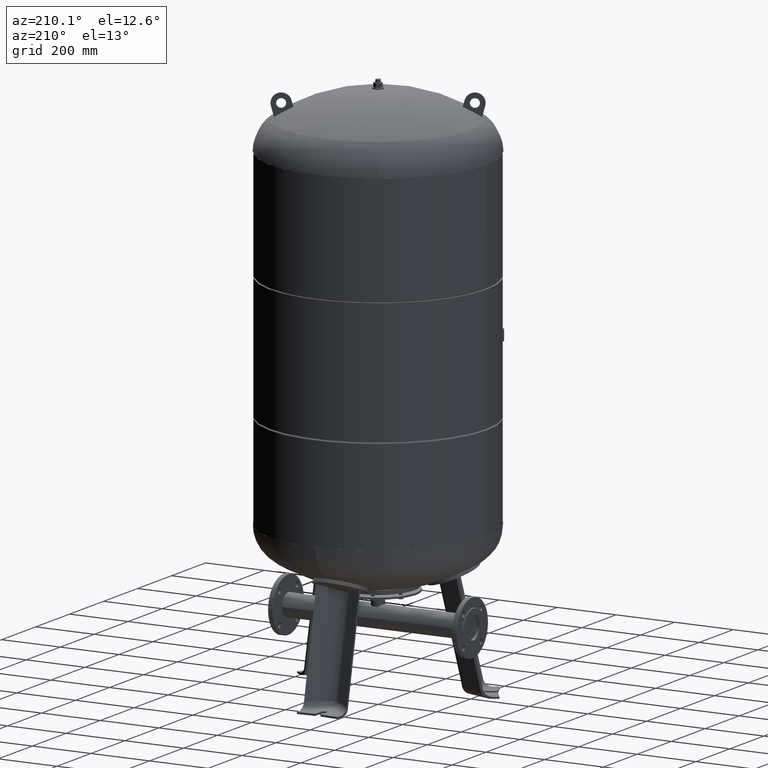
[diagram: clean part render]
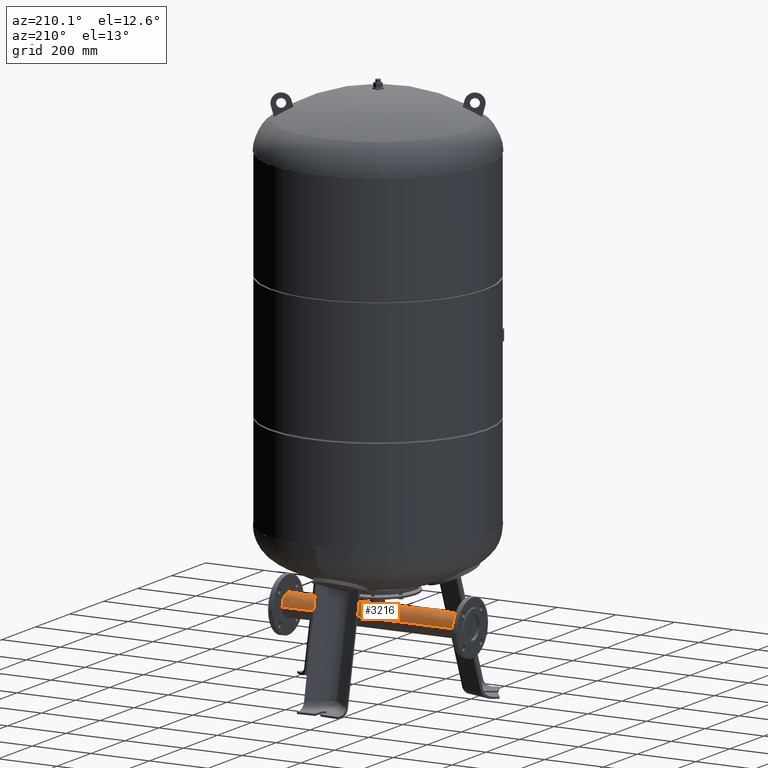
[diagram: same view with one face highlighted and labeled with its STEP entity id]
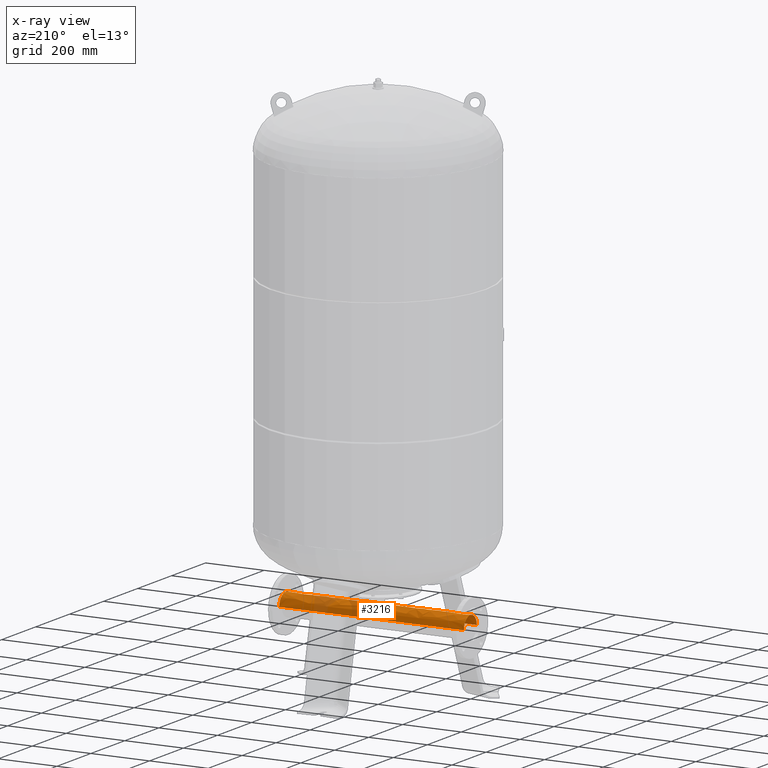
[diagram: x-ray of the same camera — body ghosted, the highlighted face saturated]
A machine part, auxiliary view. The second image highlights one B-rep face of the part: STEP entity #3216.
The next image is the same camera in x-ray: the body ghosted, the highlighted face saturated — about 13% of this face is hidden behind the body in this view.
In plain terms, the highlighted face is a freeform B-spline surface patch.
Its self-contained STEP definition (entity closure, byte-faithful):
#3035=CARTESIAN_POINT('',(-315.0,38.049999999999997,235.0));
#3036=CARTESIAN_POINT('',(315.0,38.049999999999997,235.0));
#3037=CARTESIAN_POINT('',(-315.0,38.049999999999990,196.950000000000020));
#3038=CARTESIAN_POINT('',(315.0,38.049999999999990,196.950000000000020));
#3039=CARTESIAN_POINT('',(-315.0,0.0,196.949999999999990));
#3040=CARTESIAN_POINT('',(315.0,0.0,196.949999999999990));
#3041=CARTESIAN_POINT('',(-315.0,-38.049999999999990,196.950000000000020));
#3042=CARTESIAN_POINT('',(315.0,-38.049999999999990,196.950000000000020));
#3043=CARTESIAN_POINT('',(-315.0,-38.049999999999997,235.0));
#3044=CARTESIAN_POINT('',(315.0,-38.049999999999997,235.0));
#3045=CARTESIAN_POINT('',(-315.0,-38.049999999999990,273.050000000000010));
#3046=CARTESIAN_POINT('',(315.0,-38.049999999999990,273.050000000000010));
#3047=CARTESIAN_POINT('',(-315.0,0.0,273.050000000000010));
#3048=CARTESIAN_POINT('',(315.0,0.0,273.050000000000010));
#3049=CARTESIAN_POINT('',(-315.0,38.049999999999990,273.050000000000010));
#3050=CARTESIAN_POINT('',(315.0,38.049999999999990,273.050000000000010));
#3051=CARTESIAN_POINT('',(-315.0,38.049999999999997,235.0));
#3052=CARTESIAN_POINT('',(315.0,38.049999999999997,235.0));
#3060=(BOUNDED_SURFACE()B_SPLINE_SURFACE(1,2,((#3035,#3037,#3039,#3041,#3043,#3045,#3047,#3049,#3051),(#3036,#3038,#3040,#3042,#3044,#3046,#3048,#3050,#3052)),.UNSPECIFIED.,.F.,.T.,.U.)B_SPLINE_SURFACE_WITH_KNOTS((2,2),(3,2,2,2,3),(-16.228646517739818,0.328515111695140),(0.0,59.768800234545807,119.537600469091610,179.306400703637420,239.075200938183230),.UNSPECIFIED.)GEOMETRIC_REPRESENTATION_ITEM()RATIONAL_B_SPLINE_SURFACE(((1.0,0.707106781186548,1.0,0.707106781186548,1.0,0.707106781186548,1.0,0.707106781186548,1.0),(1.0,0.707106781186548,1.0,0.707106781186548,1.0,0.707106781186548,1.0,0.707106781186548,1.0)))REPRESENTATION_ITEM('')SURFACE());
#3061=CARTESIAN_POINT('',(315.0,-38.049999999999997,235.0));
#3062=VERTEX_POINT('',#3061);
#3063=CARTESIAN_POINT('',(-315.0,-38.049999999999997,235.0));
#3064=VERTEX_POINT('',#3063);
#3065=CARTESIAN_POINT('',(315.0,-38.049999999999997,235.0));
#3066=DIRECTION('',(-1.0,0.0,0.0));
#3067=VECTOR('',#3066,630.0);
#3068=LINE('',#3065,#3067);
#3069=EDGE_CURVE('',#3062,#3064,#3068,.T.);
#3070=ORIENTED_EDGE('',*,*,#3069,.F.);
#3071=CARTESIAN_POINT('',(315.0,38.049999999999997,235.0));
#3072=VERTEX_POINT('',#3071);
#3073=CARTESIAN_POINT('',(315.0,0.0,235.0));
#3074=DIRECTION('',(-1.0,0.0,0.0));
#3075=DIRECTION('',(0.0,-1.0,0.0));
#3076=AXIS2_PLACEMENT_3D('',#3073,#3074,#3075);
#3077=CIRCLE('',#3076,38.049999999999997);
#3078=EDGE_CURVE('',#3062,#3072,#3077,.T.);
#3079=ORIENTED_EDGE('',*,*,#3078,.T.);
#3080=CARTESIAN_POINT('',(-315.0,38.049999999999997,235.0));
#3081=VERTEX_POINT('',#3080);
#3082=CARTESIAN_POINT('',(315.0,38.049999999999997,235.0));
#3083=DIRECTION('',(-1.0,0.0,0.0));
#3084=VECTOR('',#3083,630.0);
#3085=LINE('',#3082,#3084);
#3086=EDGE_CURVE('',#3072,#3081,#3085,.T.);
#3087=ORIENTED_EDGE('',*,*,#3086,.T.);
#3088=CARTESIAN_POINT('',(-315.0,0.0,235.0));
#3089=DIRECTION('',(-1.0,0.0,0.0));
#3090=DIRECTION('',(0.0,-1.0,0.0));
#3091=AXIS2_PLACEMENT_3D('',#3088,#3089,#3090);
#3092=CIRCLE('',#3091,38.049999999999997);
#3093=EDGE_CURVE('',#3064,#3081,#3092,.T.);
#3094=ORIENTED_EDGE('',*,*,#3093,.F.);
#3095=EDGE_LOOP('',(#3070,#3079,#3087,#3094));
#3096=FACE_OUTER_BOUND('',#3095,.T.);
#3097=CARTESIAN_POINT('',(0.0,-21.199999999999999,266.596874845465320));
#3098=VERTEX_POINT('',#3097);
#3099=CARTESIAN_POINT('',(-21.199999999999999,-2.519328E-015,273.050000000000010));
#3100=VERTEX_POINT('',#3099);
#3101=CARTESIAN_POINT('',(0.0,-21.199999999999999,266.596874845465320));
#3102=CARTESIAN_POINT('',(-0.684585293074273,-21.199999999999999,266.596874845465320));
#3103=CARTESIAN_POINT('',(-1.377452142277209,-21.166708594477495,266.619292575960120));
#3104=CARTESIAN_POINT('',(-2.766374379911250,-21.030313833106273,266.710173695642030));
#3105=CARTESIAN_POINT('',(-3.462431083452391,-20.927218169830443,266.778628530880380));
#3106=CARTESIAN_POINT('',(-4.844914406470025,-20.650997411301287,266.958817206213150));
#3107=CARTESIAN_POINT('',(-5.531460522082607,-20.477858819467500,267.070541362384690));
#3108=CARTESIAN_POINT('',(-6.883365094038932,-20.063874060631406,267.331150347373300));
#3109=CARTESIAN_POINT('',(-7.548730982444999,-19.823032702061159,267.480004259834970));
#3110=CARTESIAN_POINT('',(-9.497166824297603,-19.005995384276886,267.969344920893380));
#3111=CARTESIAN_POINT('',(-10.734610572623220,-18.333244807259124,268.353443454886250));
#3112=CARTESIAN_POINT('',(-13.018063174153196,-16.788977358759897,269.156848428061550));
#3113=CARTESIAN_POINT('',(-14.064137267638760,-15.917190254670853,269.575449832900230));
#3114=CARTESIAN_POINT('',(-15.913009704236497,-14.068317818073117,270.367951044577180));
#3115=CARTESIAN_POINT('',(-16.784150816972002,-13.024363873479260,270.771688976334640));
#3116=CARTESIAN_POINT('',(-18.330022554113473,-10.740206992946073,271.522537428923040));
#3117=CARTESIAN_POINT('',(-19.004869331667052,-9.499909197223854,271.869120136502600));
#3118=CARTESIAN_POINT('',(-19.823801314344117,-7.546869513123008,272.300022927991340));
#3119=CARTESIAN_POINT('',(-20.065099964897350,-6.879923564494812,272.429137315187800));
#3120=CARTESIAN_POINT('',(-20.479525293916559,-5.525452795065939,272.652928701788940));
#3121=CARTESIAN_POINT('',(-20.652646762295106,-4.837924861326130,272.747596508600280));
#3122=CARTESIAN_POINT('',(-20.928502510781129,-3.454723999571811,272.899227448984670));
#3123=CARTESIAN_POINT('',(-21.031250399530684,-2.758946899530199,272.956195897754810));
#3124=CARTESIAN_POINT('',(-21.167002203943369,-1.372333436321581,273.031582874799200));
#3125=CARTESIAN_POINT('',(-21.199999999999999,-0.681496397760064,273.050000000000010));
#3126=CARTESIAN_POINT('',(-21.199999999999999,-2.519328E-015,273.050000000000010));
#3127=B_SPLINE_CURVE_WITH_KNOTS('',3,(#3101,#3102,#3103,#3104,#3105,#3106,#3107,#3108,#3109,#3110,#3111,#3112,#3113,#3114,#3115,#3116,#3117,#3118,#3119,#3120,#3121,#3122,#3123,#3124,#3125,#3126),.UNSPECIFIED.,.F.,.U.,(4,2,2,2,2,2,2,2,2,2,2,2,4),(0.0,2.053755879222818,4.107511758445637,6.161267637668455,8.215023516891273,12.322535275336911,16.430047033782547,20.519025420342913,24.608003806903277,26.652493000183462,28.696982193463644,30.741471386743825,32.785960580024010),.UNSPECIFIED.);
#3128=EDGE_CURVE('',#3098,#3100,#3127,.T.);
#3129=ORIENTED_EDGE('',*,*,#3128,.T.);
#3130=CARTESIAN_POINT('',(21.199999999999999,2.581269E-015,273.050000000000010));
#3131=VERTEX_POINT('',#3130);
#3132=CARTESIAN_POINT('',(-21.199999999999999,-2.519328E-015,273.050000000000010));
#3133=CARTESIAN_POINT('',(-21.199999999999999,0.681496397760059,273.050000000000010));
#3134=CARTESIAN_POINT('',(-21.167002203943369,1.372333436321577,273.031582874799200));
#3135=CARTESIAN_POINT('',(-21.031250399530684,2.758946899530193,272.956195897754810));
#3136=CARTESIAN_POINT('',(-20.928502510781129,3.454723999571804,272.899227448984670));
#3137=CARTESIAN_POINT('',(-20.652646762295106,4.837924861326121,272.747596508600280));
#3138=CARTESIAN_POINT('',(-20.479525293916566,5.525452795065932,272.652928701788940));
#3139=CARTESIAN_POINT('',(-20.065099964897357,6.879923564494805,272.429137315187800));
#3140=CARTESIAN_POINT('',(-19.823801314344117,7.546869513122999,272.300022927991340));
#3141=CARTESIAN_POINT('',(-19.004869331667059,9.499909197223849,271.869120136502600));
#3142=CARTESIAN_POINT('',(-18.330022554113476,10.740206992946069,271.522537428923040));
#3143=CARTESIAN_POINT('',(-16.784150816972002,13.024363873479258,270.771688976334640));
#3144=CARTESIAN_POINT('',(-15.913009704236501,14.068317818073115,270.367951044577180));
#3145=CARTESIAN_POINT('',(-14.064137267638763,15.917190254670853,269.575449832900230));
#3146=CARTESIAN_POINT('',(-13.018063174153200,16.788977358759897,269.156848428061550));
#3147=CARTESIAN_POINT('',(-10.734610572623222,18.333244807259124,268.353443454886250));
#3148=CARTESIAN_POINT('',(-9.497166824297610,19.005995384276886,267.969344920893380));
#3149=CARTESIAN_POINT('',(-7.548730982445005,19.823032702061159,267.480004259834910));
#3150=CARTESIAN_POINT('',(-6.883365094038936,20.063874060631402,267.331150347373300));
#3151=CARTESIAN_POINT('',(-5.531460522082611,20.477858819467496,267.070541362384690));
#3152=CARTESIAN_POINT('',(-4.844914406470029,20.650997411301287,266.958817206213150));
#3153=CARTESIAN_POINT('',(-3.462431083452394,20.927218169830443,266.778628530880330));
#3154=CARTESIAN_POINT('',(-2.766374379911251,21.030313833106273,266.710173695642080));
#3155=CARTESIAN_POINT('',(-1.377452142277209,21.166708594477495,266.619292575960120));
#3156=CARTESIAN_POINT('',(-0.684585293074273,21.199999999999999,266.596874845465320));
#3157=CARTESIAN_POINT('',(0.684585293074273,21.199999999999999,266.596874845465320));
#3158=CARTESIAN_POINT('',(1.377452142277209,21.166708594477495,266.619292575960120));
#3159=CARTESIAN_POINT('',(2.766374379911251,21.030313833106273,266.710173695642080));
#3160=CARTESIAN_POINT('',(3.462431083452394,20.927218169830443,266.778628530880330));
#3161=CARTESIAN_POINT('',(4.844914406470029,20.650997411301287,266.958817206213150));
#3162=CARTESIAN_POINT('',(5.531460522082611,20.477858819467496,267.070541362384690));
#3163=CARTESIAN_POINT('',(6.883365094038936,20.063874060631402,267.331150347373300));
#3164=CARTESIAN_POINT('',(7.548730982445005,19.823032702061159,267.480004259834910));
#3165=CARTESIAN_POINT('',(9.497166824297612,19.005995384276886,267.969344920893380));
#3166=CARTESIAN_POINT('',(10.734610572623229,18.333244807259121,268.353443454886250));
#3167=CARTESIAN_POINT('',(13.018063174153202,16.788977358759894,269.156848428061550));
#3168=CARTESIAN_POINT('',(14.064137267638760,15.917190254670853,269.575449832900230));
#3169=CARTESIAN_POINT('',(15.913009704236494,14.068317818073121,270.367951044577180));
#3170=CARTESIAN_POINT('',(16.784150816971998,13.024363873479265,270.771688976334640));
#3171=CARTESIAN_POINT('',(18.330022554113469,10.740206992946081,271.522537428923040));
#3172=CARTESIAN_POINT('',(19.004869331667052,9.499909197223856,271.869120136502600));
#3173=CARTESIAN_POINT('',(19.823801314344117,7.546869513123005,272.300022927991340));
#3174=CARTESIAN_POINT('',(20.065099964897350,6.879923564494810,272.429137315187800));
#3175=CARTESIAN_POINT('',(20.479525293916559,5.525452795065934,272.652928701788940));
#3176=CARTESIAN_POINT('',(20.652646762295106,4.837924861326123,272.747596508600280));
#3177=CARTESIAN_POINT('',(20.928502510781129,3.454723999571801,272.899227448984670));
#3178=CARTESIAN_POINT('',(21.031250399530684,2.758946899530188,272.956195897754810));
#3179=CARTESIAN_POINT('',(21.167002203943369,1.372333436321575,273.031582874799200));
#3180=CARTESIAN_POINT('',(21.199999999999999,0.681496397760060,273.050000000000010));
#3181=CARTESIAN_POINT('',(21.199999999999999,2.581269E-015,273.050000000000010));
#3182=B_SPLINE_CURVE_WITH_KNOTS('',3,(#3132,#3133,#3134,#3135,#3136,#3137,#3138,#3139,#3140,#3141,#3142,#3143,#3144,#3145,#3146,#3147,#3148,#3149,#3150,#3151,#3152,#3153,#3154,#3155,#3156,#3157,#3158,#3159,#3160,#3161,#3162,#3163,#3164,#3165,#3166,#3167,#3168,#3169,#3170,#3171,#3172,#3173,#3174,#3175,#3176,#3177,#3178,#3179,#3180,#3181),.UNSPECIFIED.,.F.,.U.,(4,2,2,2,2,2,2,2,2,2,2,2,2,2,2,2,2,2,2,2,2,2,2,2,4),(32.785960580024010,34.830449773304196,36.874938966584374,38.919428159864552,40.963917353144737,45.052895739705100,49.141874126265463,53.249385884711103,57.356897643156742,59.410653522379562,61.464409401602381,63.518165280825201,65.571921160048021,67.625677039270840,69.679432918493660,71.733188797716480,73.786944676939299,77.894456435384939,82.001968193830564,86.090946580390920,90.179924966951290,92.224414160231476,94.268903353511661,96.313392546791846,98.357881740072017),.UNSPECIFIED.);
#3183=EDGE_CURVE('',#3100,#3131,#3182,.T.);
#3184=ORIENTED_EDGE('',*,*,#3183,.T.);
#3185=CARTESIAN_POINT('',(21.199999999999999,2.581269E-015,273.050000000000010));
#3186=CARTESIAN_POINT('',(21.199999999999999,-0.681496397760054,273.050000000000010));
#3187=CARTESIAN_POINT('',(21.167002203943373,-1.372333436321565,273.031582874799200));
#3188=CARTESIAN_POINT('',(21.031250399530688,-2.758946899530180,272.956195897754810));
#3189=CARTESIAN_POINT('',(20.928502510781129,-3.454723999571794,272.899227448984670));
#3190=CARTESIAN_POINT('',(20.652646762295106,-4.837924861326116,272.747596508600340));
#3191=CARTESIAN_POINT('',(20.479525293916566,-5.525452795065928,272.652928701788940));
#3192=CARTESIAN_POINT('',(20.065099964897357,-6.879923564494805,272.429137315187800));
#3193=CARTESIAN_POINT('',(19.823801314344117,-7.546869513122999,272.300022927991340));
#3194=CARTESIAN_POINT('',(19.004869331667056,-9.499909197223850,271.869120136502600));
#3195=CARTESIAN_POINT('',(18.330022554113473,-10.740206992946073,271.522537428923040));
#3196=CARTESIAN_POINT('',(16.784150816972005,-13.024363873479256,270.771688976334640));
#3197=CARTESIAN_POINT('',(15.913009704236501,-14.068317818073114,270.367951044577180));
#3198=CARTESIAN_POINT('',(14.064137267638761,-15.917190254670853,269.575449832900230));
#3199=CARTESIAN_POINT('',(13.018063174153193,-16.788977358759901,269.156848428061550));
#3200=CARTESIAN_POINT('',(10.734610572623215,-18.333244807259131,268.353443454886250));
#3201=CARTESIAN_POINT('',(9.497166824297601,-19.005995384276893,267.969344920893380));
#3202=CARTESIAN_POINT('',(7.548730982444997,-19.823032702061163,267.480004259834970));
#3203=CARTESIAN_POINT('',(6.883365094038929,-20.063874060631406,267.331150347373300));
#3204=CARTESIAN_POINT('',(5.531460522082605,-20.477858819467500,267.070541362384690));
#3205=CARTESIAN_POINT('',(4.844914406470023,-20.650997411301287,266.958817206213150));
#3206=CARTESIAN_POINT('',(3.462431083452390,-20.927218169830443,266.778628530880380));
#3207=CARTESIAN_POINT('',(2.766374379911249,-21.030313833106273,266.710173695642030));
#3208=CARTESIAN_POINT('',(1.377452142277209,-21.166708594477495,266.619292575960120));
#3209=CARTESIAN_POINT('',(0.684585293074273,-21.199999999999999,266.596874845465320));
#3210=CARTESIAN_POINT('',(0.0,-21.199999999999999,266.596874845465320));
#3211=B_SPLINE_CURVE_WITH_KNOTS('',3,(#3185,#3186,#3187,#3188,#3189,#3190,#3191,#3192,#3193,#3194,#3195,#3196,#3197,#3198,#3199,#3200,#3201,#3202,#3203,#3204,#3205,#3206,#3207,#3208,#3209,#3210),.UNSPECIFIED.,.F.,.U.,(4,2,2,2,2,2,2,2,2,2,2,2,4),(98.357881740072017,100.402370933352190,102.446860126632370,104.491349319912560,106.535838513192740,110.624816899753110,114.713795286313470,118.821307044759120,122.928818803204760,124.982574682427580,127.036330561650400,129.090086440873220,131.143842320096040),.UNSPECIFIED.);
#3212=EDGE_CURVE('',#3131,#3098,#3211,.T.);
#3213=ORIENTED_EDGE('',*,*,#3212,.T.);
#3214=EDGE_LOOP('',(#3129,#3184,#3213));
#3215=FACE_BOUND('',#3214,.T.);
#3216=ADVANCED_FACE('',(#3096,#3215),#3060,.T.);